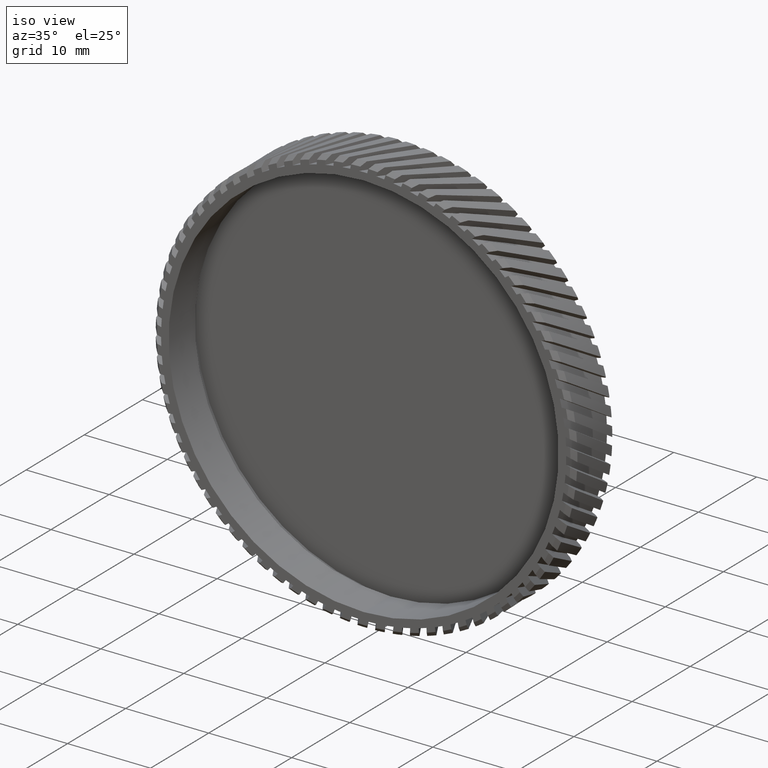
[diagram: clean part render]
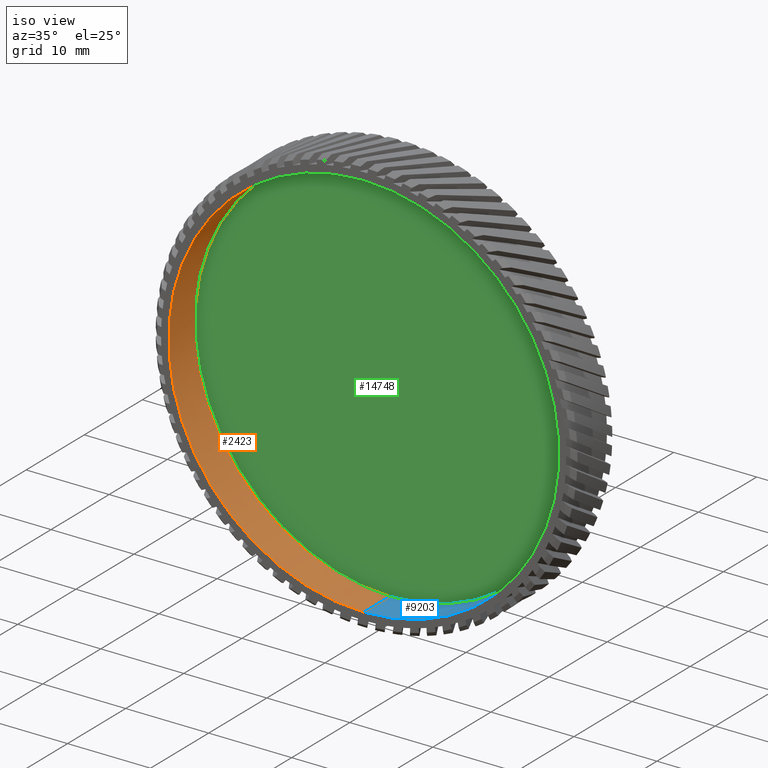
[diagram: same view with three faces highlighted in distinct colors, each labeled with its STEP entity id]
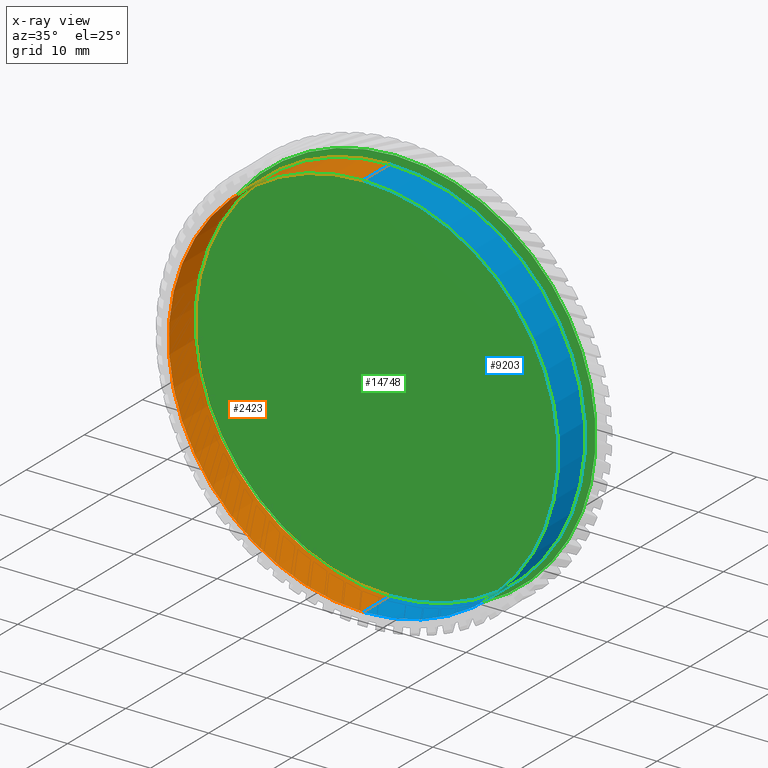
[diagram: x-ray of the same camera — body ghosted, the three highlighted faces saturated]
A machine part, iso view with three faces highlighted in distinct colors.
The next image is the same camera in x-ray (body ghosted, the three faces saturated) — at least one of them is partly hidden behind the body in this view.
Their STEP definitions:

[orange] entity #2423 — the highlighted cylindrical surface (partial cylindrical patch) has radius 23.5 mm, axis along (-0, 1, -0).
#203 = DIRECTION ( 'NONE',  ( -0.0000000000000000000, 1.000000000000000000, -0.0000000000000000000 ) ) ;
#350 = VECTOR ( 'NONE', #11777, 1000.000000000000000 ) ;
#673 = LINE ( 'NONE', #11478, #12822 ) ;
#816 = AXIS2_PLACEMENT_3D ( 'NONE', #13338, #2198, #14659 ) ;
#1016 = EDGE_CURVE ( 'NONE', #2165, #8832, #673, .T. ) ;
#1054 = CARTESIAN_POINT ( 'NONE',  ( 0.0000000000000000000, 46.02073106022621100, 0.0000000000000000000 ) ) ;
#1559 = VERTEX_POINT ( 'NONE', #7306 ) ;
#2165 = VERTEX_POINT ( 'NONE', #2726 ) ;
#2198 = DIRECTION ( 'NONE',  ( -0.0000000000000000000, 1.000000000000000000, -0.0000000000000000000 ) ) ;
#2423 = ADVANCED_FACE ( 'NONE', ( #5372 ), #7760, .F. ) ;
#2726 = CARTESIAN_POINT ( 'NONE',  ( 0.0000000000000000000, -13.33088448223191600, 23.50000000000000700 ) ) ;
#3307 = DIRECTION ( 'NONE',  ( -0.0000000000000000000, 1.000000000000000000, -0.0000000000000000000 ) ) ;
#3487 = DIRECTION ( 'NONE',  ( 0.0000000000000000000, 0.0000000000000000000, 1.000000000000000000 ) ) ;
#3646 = LINE ( 'NONE', #10460, #350 ) ;
#3820 = CARTESIAN_POINT ( 'NONE',  ( 0.0000000000000000000, -8.830884482231917700, 23.50000000000000700 ) ) ;
#4853 = CARTESIAN_POINT ( 'NONE',  ( 2.877919977996281100E-015, -13.33088448223191600, -23.50000000000000700 ) ) ;
#5372 = FACE_OUTER_BOUND ( 'NONE', #7402, .T. ) ;
#5554 = VERTEX_POINT ( 'NONE', #4853 ) ;
#6059 = DIRECTION ( 'NONE',  ( -0.0000000000000000000, 1.000000000000000000, -0.0000000000000000000 ) ) ;
#6454 = CIRCLE ( 'NONE', #13928, 23.50000000000000700 ) ;
#7095 = DIRECTION ( 'NONE',  ( 0.0000000000000000000, 0.0000000000000000000, 1.000000000000000000 ) ) ;
#7306 = CARTESIAN_POINT ( 'NONE',  ( 2.877919977996281100E-015, -8.830884482231917700, -23.50000000000000700 ) ) ;
#7402 = EDGE_LOOP ( 'NONE', ( #15778, #8137, #15993, #11484 ) ) ;
#7760 = CYLINDRICAL_SURFACE ( 'NONE', #11128, 23.50000000000000700 ) ;
#8137 = ORIENTED_EDGE ( 'NONE', *, *, #13169, .T. ) ;
#8402 = CIRCLE ( 'NONE', #816, 23.50000000000000700 ) ;
#8832 = VERTEX_POINT ( 'NONE', #3820 ) ;
#10067 = EDGE_CURVE ( 'NONE', #1559, #8832, #6454, .T. ) ;
#10460 = CARTESIAN_POINT ( 'NONE',  ( 2.877919977996281100E-015, 46.02073106022621100, -23.50000000000000700 ) ) ;
#11128 = AXIS2_PLACEMENT_3D ( 'NONE', #1054, #6059, #3487 ) ;
#11478 = CARTESIAN_POINT ( 'NONE',  ( 0.0000000000000000000, 46.02073106022621100, 23.50000000000000700 ) ) ;
#11484 = ORIENTED_EDGE ( 'NONE', *, *, #1016, .F. ) ;
#11746 = EDGE_CURVE ( 'NONE', #5554, #2165, #8402, .T. ) ;
#11777 = DIRECTION ( 'NONE',  ( -0.0000000000000000000, 1.000000000000000000, -0.0000000000000000000 ) ) ;
#12822 = VECTOR ( 'NONE', #203, 1000.000000000000000 ) ;
#13169 = EDGE_CURVE ( 'NONE', #5554, #1559, #3646, .T. ) ;
#13287 = CARTESIAN_POINT ( 'NONE',  ( 0.0000000000000000000, -8.830884482231917700, 0.0000000000000000000 ) ) ;
#13338 = CARTESIAN_POINT ( 'NONE',  ( 0.0000000000000000000, -13.33088448223191600, 0.0000000000000000000 ) ) ;
#13928 = AXIS2_PLACEMENT_3D ( 'NONE', #13287, #3307, #7095 ) ;
#14659 = DIRECTION ( 'NONE',  ( 0.0000000000000000000, 0.0000000000000000000, 1.000000000000000000 ) ) ;
#15778 = ORIENTED_EDGE ( 'NONE', *, *, #11746, .F. ) ;
#15993 = ORIENTED_EDGE ( 'NONE', *, *, #10067, .T. ) ;

[blue] entity #9203 — the highlighted cylindrical surface (partial cylindrical patch) has radius 23.5 mm, axis along (-0, 1, -0).
#203 = DIRECTION ( 'NONE',  ( -0.0000000000000000000, 1.000000000000000000, -0.0000000000000000000 ) ) ;
#350 = VECTOR ( 'NONE', #11777, 1000.000000000000000 ) ;
#673 = LINE ( 'NONE', #11478, #12822 ) ;
#735 = ORIENTED_EDGE ( 'NONE', *, *, #13231, .F. ) ;
#1014 = CARTESIAN_POINT ( 'NONE',  ( 0.0000000000000000000, 46.02073106022621100, 0.0000000000000000000 ) ) ;
#1016 = EDGE_CURVE ( 'NONE', #2165, #8832, #673, .T. ) ;
#1457 = EDGE_LOOP ( 'NONE', ( #14806, #735, #10289, #1475 ) ) ;
#1475 = ORIENTED_EDGE ( 'NONE', *, *, #7139, .T. ) ;
#1559 = VERTEX_POINT ( 'NONE', #7306 ) ;
#2165 = VERTEX_POINT ( 'NONE', #2726 ) ;
#2216 = DIRECTION ( 'NONE',  ( -0.0000000000000000000, 1.000000000000000000, -0.0000000000000000000 ) ) ;
#2726 = CARTESIAN_POINT ( 'NONE',  ( 0.0000000000000000000, -13.33088448223191600, 23.50000000000000700 ) ) ;
#3497 = DIRECTION ( 'NONE',  ( 0.0000000000000000000, 0.0000000000000000000, 1.000000000000000000 ) ) ;
#3646 = LINE ( 'NONE', #10460, #350 ) ;
#3820 = CARTESIAN_POINT ( 'NONE',  ( 0.0000000000000000000, -8.830884482231917700, 23.50000000000000700 ) ) ;
#4313 = DIRECTION ( 'NONE',  ( -0.0000000000000000000, 1.000000000000000000, -0.0000000000000000000 ) ) ;
#4652 = CIRCLE ( 'NONE', #11364, 23.50000000000000700 ) ;
#4853 = CARTESIAN_POINT ( 'NONE',  ( 2.877919977996281100E-015, -13.33088448223191600, -23.50000000000000700 ) ) ;
#5554 = VERTEX_POINT ( 'NONE', #4853 ) ;
#6615 = CARTESIAN_POINT ( 'NONE',  ( 0.0000000000000000000, -13.33088448223191600, 0.0000000000000000000 ) ) ;
#6837 = DIRECTION ( 'NONE',  ( 0.0000000000000000000, 0.0000000000000000000, 1.000000000000000000 ) ) ;
#7139 = EDGE_CURVE ( 'NONE', #8832, #1559, #12352, .T. ) ;
#7220 = FACE_OUTER_BOUND ( 'NONE', #1457, .T. ) ;
#7237 = DIRECTION ( 'NONE',  ( -0.0000000000000000000, 1.000000000000000000, -0.0000000000000000000 ) ) ;
#7306 = CARTESIAN_POINT ( 'NONE',  ( 2.877919977996281100E-015, -8.830884482231917700, -23.50000000000000700 ) ) ;
#8832 = VERTEX_POINT ( 'NONE', #3820 ) ;
#9203 = ADVANCED_FACE ( 'NONE', ( #7220 ), #9786, .F. ) ;
#9786 = CYLINDRICAL_SURFACE ( 'NONE', #10168, 23.50000000000000700 ) ;
#10168 = AXIS2_PLACEMENT_3D ( 'NONE', #1014, #7237, #3497 ) ;
#10289 = ORIENTED_EDGE ( 'NONE', *, *, #1016, .T. ) ;
#10460 = CARTESIAN_POINT ( 'NONE',  ( 2.877919977996281100E-015, 46.02073106022621100, -23.50000000000000700 ) ) ;
#11009 = CARTESIAN_POINT ( 'NONE',  ( 0.0000000000000000000, -8.830884482231917700, 0.0000000000000000000 ) ) ;
#11364 = AXIS2_PLACEMENT_3D ( 'NONE', #6615, #4313, #6837 ) ;
#11423 = AXIS2_PLACEMENT_3D ( 'NONE', #11009, #2216, #14676 ) ;
#11478 = CARTESIAN_POINT ( 'NONE',  ( 0.0000000000000000000, 46.02073106022621100, 23.50000000000000700 ) ) ;
#11777 = DIRECTION ( 'NONE',  ( -0.0000000000000000000, 1.000000000000000000, -0.0000000000000000000 ) ) ;
#12352 = CIRCLE ( 'NONE', #11423, 23.50000000000000700 ) ;
#12822 = VECTOR ( 'NONE', #203, 1000.000000000000000 ) ;
#13169 = EDGE_CURVE ( 'NONE', #5554, #1559, #3646, .T. ) ;
#13231 = EDGE_CURVE ( 'NONE', #2165, #5554, #4652, .T. ) ;
#14676 = DIRECTION ( 'NONE',  ( 0.0000000000000000000, 0.0000000000000000000, 1.000000000000000000 ) ) ;
#14806 = ORIENTED_EDGE ( 'NONE', *, *, #13169, .F. ) ;

[green] entity #14748 — the highlighted planar face has unit normal (-0, 1, 0).
#3391 = CARTESIAN_POINT ( 'NONE',  ( 0.0000000000000000000, -7.830884482231917700, 0.0000000000000000000 ) ) ;
#3411 = CARTESIAN_POINT ( 'NONE',  ( 24.10000000000000900, -7.830884482231917700, 0.0000000000000000000 ) ) ;
#3615 = EDGE_LOOP ( 'NONE', ( #11622, #4602 ) ) ;
#4404 = CARTESIAN_POINT ( 'NONE',  ( 0.0000000000000000000, -7.830884482231917700, 24.10000000000000900 ) ) ;
#4602 = ORIENTED_EDGE ( 'NONE', *, *, #10797, .F. ) ;
#4613 = EDGE_CURVE ( 'NONE', #11678, #10875, #13008, .T. ) ;
#5305 = AXIS2_PLACEMENT_3D ( 'NONE', #3411, #13300, #15990 ) ;
#5865 = DIRECTION ( 'NONE',  ( -0.0000000000000000000, 1.000000000000000000, -0.0000000000000000000 ) ) ;
#5880 = PLANE ( 'NONE',  #5305 ) ;
#7121 = AXIS2_PLACEMENT_3D ( 'NONE', #3391, #5865, #8350 ) ;
#7630 = CIRCLE ( 'NONE', #7121, 24.10000000000000900 ) ;
#8253 = AXIS2_PLACEMENT_3D ( 'NONE', #8865, #14981, #12506 ) ;
#8350 = DIRECTION ( 'NONE',  ( 0.0000000000000000000, 0.0000000000000000000, 1.000000000000000000 ) ) ;
#8865 = CARTESIAN_POINT ( 'NONE',  ( 0.0000000000000000000, -7.830884482231917700, 0.0000000000000000000 ) ) ;
#9834 = CARTESIAN_POINT ( 'NONE',  ( 2.951398785945122000E-015, -7.830884482231917700, -24.10000000000000900 ) ) ;
#10797 = EDGE_CURVE ( 'NONE', #10875, #11678, #7630, .T. ) ;
#10875 = VERTEX_POINT ( 'NONE', #9834 ) ;
#11622 = ORIENTED_EDGE ( 'NONE', *, *, #4613, .F. ) ;
#11678 = VERTEX_POINT ( 'NONE', #4404 ) ;
#12506 = DIRECTION ( 'NONE',  ( 0.0000000000000000000, 0.0000000000000000000, 1.000000000000000000 ) ) ;
#13008 = CIRCLE ( 'NONE', #8253, 24.10000000000000900 ) ;
#13300 = DIRECTION ( 'NONE',  ( -0.0000000000000000000, 1.000000000000000000, 0.0000000000000000000 ) ) ;
#14209 = FACE_OUTER_BOUND ( 'NONE', #3615, .T. ) ;
#14748 = ADVANCED_FACE ( 'NONE', ( #14209 ), #5880, .F. ) ;
#14981 = DIRECTION ( 'NONE',  ( -0.0000000000000000000, 1.000000000000000000, -0.0000000000000000000 ) ) ;
#15990 = DIRECTION ( 'NONE',  ( 0.0000000000000000000, 0.0000000000000000000, 1.000000000000000000 ) ) ;